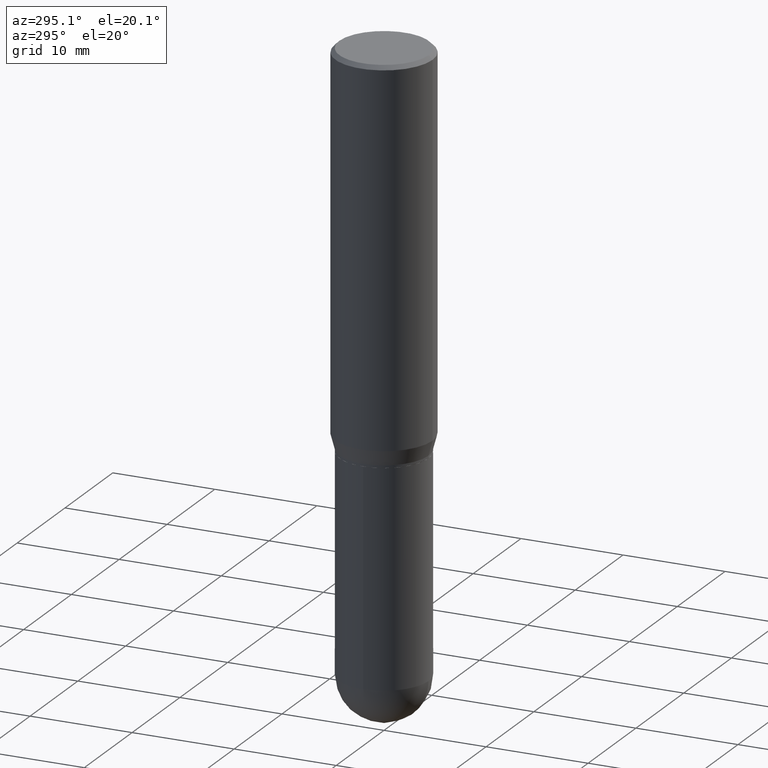
[diagram: clean part render]
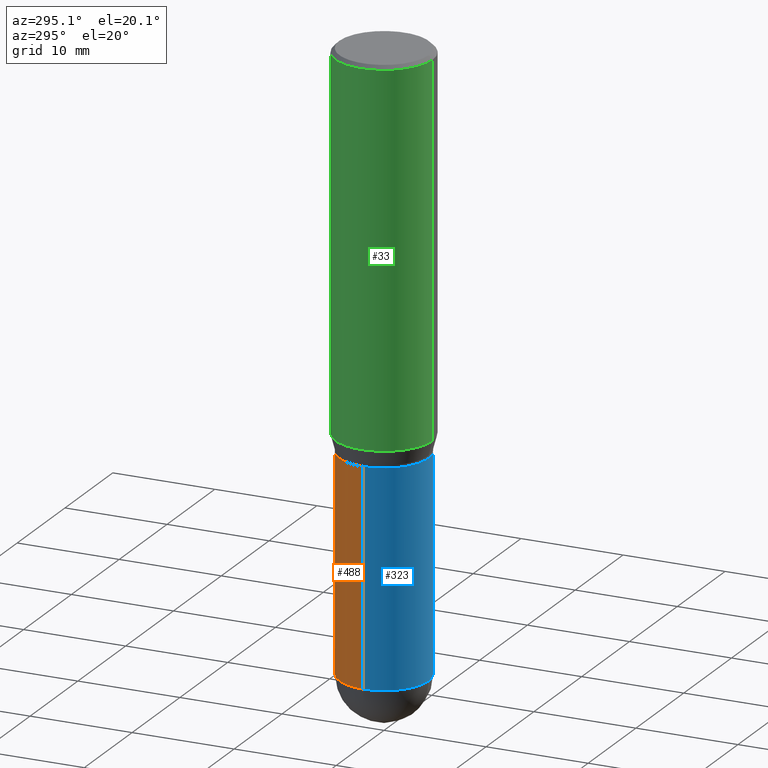
[diagram: same view with three faces highlighted in distinct colors, each labeled with its STEP entity id]
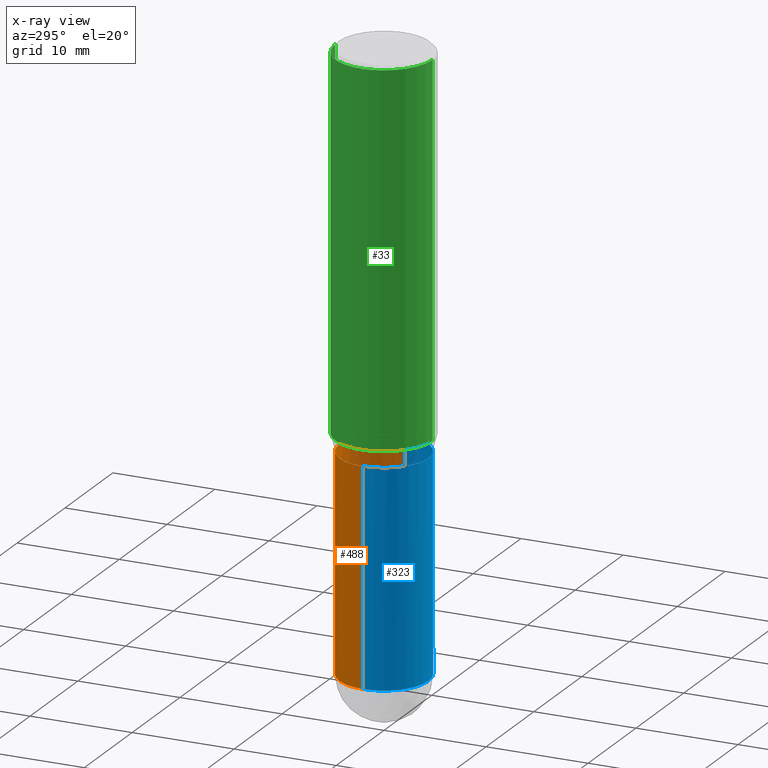
[diagram: x-ray of the same camera — body ghosted, the three highlighted faces saturated]
A machine part, auxiliary view with three faces highlighted in distinct colors.
The next image is the same camera in x-ray (body ghosted, the three faces saturated) — at least one of them is partly hidden behind the body in this view.
Their STEP definitions:

[orange] entity #488 — the highlighted cylindrical surface (partial cylindrical patch) has radius 4.3663 mm, axis along (-0, 0, 1).
#1 = ORIENTED_EDGE ( 'NONE', *, *, #360, .F. ) ;
#23 = CARTESIAN_POINT ( 'NONE',  ( 3.668203209277704895E-29, -5.237222008264718177E-15, -1.500000000000000222 ) ) ;
#57 = DIRECTION ( 'NONE',  ( -2.445468806185136597E-29, 3.491481338843145583E-15, 1.000000000000000000 ) ) ;
#67 = CARTESIAN_POINT ( 'NONE',  ( 1.200371284294326039E-15, 0.1718999999999918094, -2.328100000000000946 ) ) ;
#70 = AXIS2_PLACEMENT_3D ( 'NONE', #445, #180, #247 ) ;
#90 = CIRCLE ( 'NONE', #376, 0.1719000000000000250 ) ;
#92 = EDGE_CURVE ( 'NONE', #437, #264, #392, .T. ) ;
#99 = CYLINDRICAL_SURFACE ( 'NONE', #70, 0.1719000000000000250 ) ;
#134 = VECTOR ( 'NONE', #416, 39.37007874015748143 ) ;
#137 = DIRECTION ( 'NONE',  ( -2.445468806185136597E-29, 3.491481338843145583E-15, 1.000000000000000000 ) ) ;
#169 = CIRCLE ( 'NONE', #187, 0.1718999999999999695 ) ;
#180 = DIRECTION ( 'NONE',  ( -2.445468806185136597E-29, 3.491481338843145583E-15, 1.000000000000000000 ) ) ;
#187 = AXIS2_PLACEMENT_3D ( 'NONE', #23, #248, #338 ) ;
#212 = DIRECTION ( 'NONE',  ( 1.000000000000000000, -6.982962677686271444E-15, 0.000000000000000000 ) ) ;
#223 = CARTESIAN_POINT ( 'NONE',  ( 0.1718999999999999695, -6.437593292558987418E-15, -1.500000000000000222 ) ) ;
#242 = AXIS2_PLACEMENT_3D ( 'NONE', #420, #137, #409 ) ;
#247 = DIRECTION ( 'NONE',  ( 1.000000000000000000, -6.982962677686265922E-15, 4.876176775795935793E-29 ) ) ;
#248 = DIRECTION ( 'NONE',  ( -2.445468806185136597E-29, 3.491481338843145583E-15, 1.000000000000000000 ) ) ;
#255 = VECTOR ( 'NONE', #289, 39.37007874015748143 ) ;
#264 = VERTEX_POINT ( 'NONE', #308 ) ;
#267 = VERTEX_POINT ( 'NONE', #431 ) ;
#278 = ORIENTED_EDGE ( 'NONE', *, *, #306, .T. ) ;
#289 = DIRECTION ( 'NONE',  ( -2.445468806185136877E-29, 3.491481338843145188E-15, 1.000000000000000000 ) ) ;
#306 = EDGE_CURVE ( 'NONE', #264, #267, #447, .T. ) ;
#308 = CARTESIAN_POINT ( 'NONE',  ( -0.1719000000000000250, -5.461446893841112247E-15, -2.328100000000000058 ) ) ;
#335 = FACE_OUTER_BOUND ( 'NONE', #365, .T. ) ;
#336 = CARTESIAN_POINT ( 'NONE',  ( -0.1719000000000000250, 1.221422962771612397E-15, -8.455649420148184581E-30 ) ) ;
#338 = DIRECTION ( 'NONE',  ( 1.000000000000000000, -6.982962677686268288E-15, 0.000000000000000000 ) ) ;
#342 = EDGE_CURVE ( 'NONE', #400, #267, #169, .T. ) ;
#343 = EDGE_CURVE ( 'NONE', #469, #437, #90, .T. ) ;
#360 = EDGE_CURVE ( 'NONE', #469, #400, #406, .T. ) ;
#365 = EDGE_LOOP ( 'NONE', ( #512, #278, #389, #1, #446 ) ) ;
#370 = CARTESIAN_POINT ( 'NONE',  ( 0.1719000000000000250, -1.200371284294269241E-15, 8.382147877593214480E-30 ) ) ;
#376 = AXIS2_PLACEMENT_3D ( 'NONE', #443, #57, #212 ) ;
#389 = ORIENTED_EDGE ( 'NONE', *, *, #342, .F. ) ;
#392 = CIRCLE ( 'NONE', #242, 0.1719000000000000250 ) ;
#400 = VERTEX_POINT ( 'NONE', #223 ) ;
#406 = LINE ( 'NONE', #370, #255 ) ;
#409 = DIRECTION ( 'NONE',  ( 1.000000000000000000, -6.982962677686271444E-15, 0.000000000000000000 ) ) ;
#416 = DIRECTION ( 'NONE',  ( -2.445468806185136877E-29, 3.491481338843145188E-15, 1.000000000000000000 ) ) ;
#420 = CARTESIAN_POINT ( 'NONE',  ( 5.693295927679617284E-29, -8.128517704960729139E-15, -2.328100000000000058 ) ) ;
#431 = CARTESIAN_POINT ( 'NONE',  ( -0.1718999999999999695, -5.461446893841111458E-15, -1.500000000000000222 ) ) ;
#437 = VERTEX_POINT ( 'NONE', #67 ) ;
#443 = CARTESIAN_POINT ( 'NONE',  ( 5.693295927679617284E-29, -8.128517704960729139E-15, -2.328100000000000058 ) ) ;
#445 = CARTESIAN_POINT ( 'NONE',  ( 0.000000000000000000, 0.000000000000000000, 0.000000000000000000 ) ) ;
#446 = ORIENTED_EDGE ( 'NONE', *, *, #343, .T. ) ;
#447 = LINE ( 'NONE', #336, #134 ) ;
#469 = VERTEX_POINT ( 'NONE', #484 ) ;
#484 = CARTESIAN_POINT ( 'NONE',  ( 0.1719000000000000250, -7.883241140906993293E-15, -2.328100000000000058 ) ) ;
#488 = ADVANCED_FACE ( 'NONE', ( #335 ), #99, .T. ) ;
#512 = ORIENTED_EDGE ( 'NONE', *, *, #92, .T. ) ;

[blue] entity #323 — the highlighted cylindrical surface (partial cylindrical patch) has radius 4.3663 mm, axis along (-0, 0, 1).
#19 = DIRECTION ( 'NONE',  ( -2.445468806185136597E-29, 3.491481338843145583E-15, 1.000000000000000000 ) ) ;
#31 = DIRECTION ( 'NONE',  ( -2.445468806185136597E-29, 3.491481338843145583E-15, 1.000000000000000000 ) ) ;
#49 = EDGE_CURVE ( 'NONE', #164, #469, #482, .T. ) ;
#54 = AXIS2_PLACEMENT_3D ( 'NONE', #464, #500, #465 ) ;
#60 = FACE_OUTER_BOUND ( 'NONE', #155, .T. ) ;
#74 = CARTESIAN_POINT ( 'NONE',  ( -1.221422962771555008E-15, -0.1719000000000081296, -2.328099999999999614 ) ) ;
#134 = VECTOR ( 'NONE', #416, 39.37007874015748143 ) ;
#139 = AXIS2_PLACEMENT_3D ( 'NONE', #191, #31, #422 ) ;
#142 = DIRECTION ( 'NONE',  ( 1.000000000000000000, -6.982962677686265922E-15, 4.876176775795935793E-29 ) ) ;
#155 = EDGE_LOOP ( 'NONE', ( #398, #481, #510, #448, #439 ) ) ;
#164 = VERTEX_POINT ( 'NONE', #74 ) ;
#191 = CARTESIAN_POINT ( 'NONE',  ( 3.668203209277704895E-29, -5.237222008264718177E-15, -1.500000000000000222 ) ) ;
#218 = DIRECTION ( 'NONE',  ( -2.445468806185136597E-29, 3.491481338843145583E-15, 1.000000000000000000 ) ) ;
#223 = CARTESIAN_POINT ( 'NONE',  ( 0.1718999999999999695, -6.437593292558987418E-15, -1.500000000000000222 ) ) ;
#228 = EDGE_CURVE ( 'NONE', #267, #400, #383, .T. ) ;
#251 = CYLINDRICAL_SURFACE ( 'NONE', #393, 0.1719000000000000250 ) ;
#253 = EDGE_CURVE ( 'NONE', #264, #164, #302, .T. ) ;
#255 = VECTOR ( 'NONE', #289, 39.37007874015748143 ) ;
#261 = CARTESIAN_POINT ( 'NONE',  ( 5.693295927679617284E-29, -8.128517704960729139E-15, -2.328100000000000058 ) ) ;
#264 = VERTEX_POINT ( 'NONE', #308 ) ;
#267 = VERTEX_POINT ( 'NONE', #431 ) ;
#289 = DIRECTION ( 'NONE',  ( -2.445468806185136877E-29, 3.491481338843145188E-15, 1.000000000000000000 ) ) ;
#292 = DIRECTION ( 'NONE',  ( 1.000000000000000000, -6.982962677686271444E-15, 0.000000000000000000 ) ) ;
#302 = CIRCLE ( 'NONE', #54, 0.1719000000000000250 ) ;
#306 = EDGE_CURVE ( 'NONE', #264, #267, #447, .T. ) ;
#308 = CARTESIAN_POINT ( 'NONE',  ( -0.1719000000000000250, -5.461446893841112247E-15, -2.328100000000000058 ) ) ;
#323 = ADVANCED_FACE ( 'NONE', ( #60 ), #251, .T. ) ;
#336 = CARTESIAN_POINT ( 'NONE',  ( -0.1719000000000000250, 1.221422962771612397E-15, -8.455649420148184581E-30 ) ) ;
#360 = EDGE_CURVE ( 'NONE', #469, #400, #406, .T. ) ;
#370 = CARTESIAN_POINT ( 'NONE',  ( 0.1719000000000000250, -1.200371284294269241E-15, 8.382147877593214480E-30 ) ) ;
#383 = CIRCLE ( 'NONE', #139, 0.1718999999999999695 ) ;
#393 = AXIS2_PLACEMENT_3D ( 'NONE', #411, #218, #142 ) ;
#398 = ORIENTED_EDGE ( 'NONE', *, *, #306, .F. ) ;
#400 = VERTEX_POINT ( 'NONE', #223 ) ;
#406 = LINE ( 'NONE', #370, #255 ) ;
#411 = CARTESIAN_POINT ( 'NONE',  ( 0.000000000000000000, 0.000000000000000000, 0.000000000000000000 ) ) ;
#416 = DIRECTION ( 'NONE',  ( -2.445468806185136877E-29, 3.491481338843145188E-15, 1.000000000000000000 ) ) ;
#422 = DIRECTION ( 'NONE',  ( 1.000000000000000000, -6.982962677686268288E-15, 0.000000000000000000 ) ) ;
#431 = CARTESIAN_POINT ( 'NONE',  ( -0.1718999999999999695, -5.461446893841111458E-15, -1.500000000000000222 ) ) ;
#439 = ORIENTED_EDGE ( 'NONE', *, *, #228, .F. ) ;
#447 = LINE ( 'NONE', #336, #134 ) ;
#448 = ORIENTED_EDGE ( 'NONE', *, *, #360, .T. ) ;
#464 = CARTESIAN_POINT ( 'NONE',  ( 5.693295927679617284E-29, -8.128517704960729139E-15, -2.328100000000000058 ) ) ;
#465 = DIRECTION ( 'NONE',  ( 1.000000000000000000, -6.982962677686271444E-15, 0.000000000000000000 ) ) ;
#469 = VERTEX_POINT ( 'NONE', #484 ) ;
#475 = AXIS2_PLACEMENT_3D ( 'NONE', #261, #19, #292 ) ;
#481 = ORIENTED_EDGE ( 'NONE', *, *, #253, .T. ) ;
#482 = CIRCLE ( 'NONE', #475, 0.1719000000000000250 ) ;
#484 = CARTESIAN_POINT ( 'NONE',  ( 0.1719000000000000250, -7.883241140906993293E-15, -2.328100000000000058 ) ) ;
#500 = DIRECTION ( 'NONE',  ( -2.445468806185136597E-29, 3.491481338843145583E-15, 1.000000000000000000 ) ) ;
#510 = ORIENTED_EDGE ( 'NONE', *, *, #49, .T. ) ;

[green] entity #33 — the highlighted cylindrical surface (partial cylindrical patch) has radius 4.7625 mm, axis along (-0, 0, 1).
#20 = CIRCLE ( 'NONE', #311, 0.1875000000000000278 ) ;
#33 = ADVANCED_FACE ( 'NONE', ( #487 ), #101, .T. ) ;
#35 = CARTESIAN_POINT ( 'NONE',  ( 3.500855129308181168E-29, -4.999775292141012103E-15, -1.431780007401925348 ) ) ;
#48 = AXIS2_PLACEMENT_3D ( 'NONE', #334, #216, #492 ) ;
#80 = AXIS2_PLACEMENT_3D ( 'NONE', #35, #346, #502 ) ;
#101 = CYLINDRICAL_SURFACE ( 'NONE', #48, 0.1875000000000000278 ) ;
#121 = ORIENTED_EDGE ( 'NONE', *, *, #184, .F. ) ;
#128 = VERTEX_POINT ( 'NONE', #211 ) ;
#132 = VERTEX_POINT ( 'NONE', #257 ) ;
#149 = CARTESIAN_POINT ( 'NONE',  ( 1.332267629550222558E-15, 0.1874999999999950318, -1.431780007401926014 ) ) ;
#156 = EDGE_CURVE ( 'NONE', #132, #128, #20, .T. ) ;
#162 = VERTEX_POINT ( 'NONE', #149 ) ;
#172 = CARTESIAN_POINT ( 'NONE',  ( 3.667660301732473984E-31, -5.237999482769862300E-17, -0.01499999999999999077 ) ) ;
#184 = EDGE_CURVE ( 'NONE', #162, #132, #386, .T. ) ;
#190 = LINE ( 'NONE', #499, #468 ) ;
#211 = CARTESIAN_POINT ( 'NONE',  ( -1.309305502066174614E-15, -0.1875000000000000833, -0.01499999999999933678 ) ) ;
#216 = DIRECTION ( 'NONE',  ( -2.445106867821650572E-29, 3.491999655179909992E-15, 1.000000000000000000 ) ) ;
#222 = ORIENTED_EDGE ( 'NONE', *, *, #156, .F. ) ;
#257 = CARTESIAN_POINT ( 'NONE',  ( 1.332267629550222953E-15, 0.1874999999999999445, -0.01500000000000064650 ) ) ;
#266 = DIRECTION ( 'NONE',  ( -2.445106867821650572E-29, 3.491999655179910386E-15, 1.000000000000000000 ) ) ;
#300 = DIRECTION ( 'NONE',  ( -2.445106867821650572E-29, 3.491999655179909992E-15, 1.000000000000000000 ) ) ;
#304 = DIRECTION ( 'NONE',  ( -2.445106867821650572E-29, 3.491999655179910386E-15, 1.000000000000000000 ) ) ;
#305 = DIRECTION ( 'NONE',  ( -6.982962677686265922E-15, -1.000000000000000000, 3.494488891895536035E-15 ) ) ;
#311 = AXIS2_PLACEMENT_3D ( 'NONE', #172, #300, #305 ) ;
#317 = ORIENTED_EDGE ( 'NONE', *, *, #414, .T. ) ;
#321 = ORIENTED_EDGE ( 'NONE', *, *, #451, .T. ) ;
#334 = CARTESIAN_POINT ( 'NONE',  ( 0.000000000000000000, 0.000000000000000000, 0.000000000000000000 ) ) ;
#340 = CARTESIAN_POINT ( 'NONE',  ( 1.332267629550187651E-15, 0.1875000000000000278, -6.547499353462331727E-16 ) ) ;
#346 = DIRECTION ( 'NONE',  ( -2.445106867821650572E-29, 3.491999655179909992E-15, 1.000000000000000000 ) ) ;
#363 = EDGE_LOOP ( 'NONE', ( #121, #321, #317, #222 ) ) ;
#374 = VECTOR ( 'NONE', #266, 39.37007874015748143 ) ;
#386 = LINE ( 'NONE', #340, #374 ) ;
#414 = EDGE_CURVE ( 'NONE', #432, #128, #190, .T. ) ;
#425 = CARTESIAN_POINT ( 'NONE',  ( -1.309305502066140101E-15, -0.1875000000000049960, -1.431780007401924903 ) ) ;
#432 = VERTEX_POINT ( 'NONE', #425 ) ;
#433 = CIRCLE ( 'NONE', #80, 0.1875000000000000278 ) ;
#451 = EDGE_CURVE ( 'NONE', #162, #432, #433, .T. ) ;
#468 = VECTOR ( 'NONE', #304, 39.37007874015748143 ) ;
#487 = FACE_OUTER_BOUND ( 'NONE', #363, .T. ) ;
#492 = DIRECTION ( 'NONE',  ( -6.982962677686265922E-15, -1.000000000000000000, 3.491999655179909597E-15 ) ) ;
#499 = CARTESIAN_POINT ( 'NONE',  ( -1.309305502066175008E-15, -0.1875000000000000278, 6.547499353462331727E-16 ) ) ;
#502 = DIRECTION ( 'NONE',  ( -6.982962677686265922E-15, -1.000000000000000000, 2.913971193241880372E-15 ) ) ;